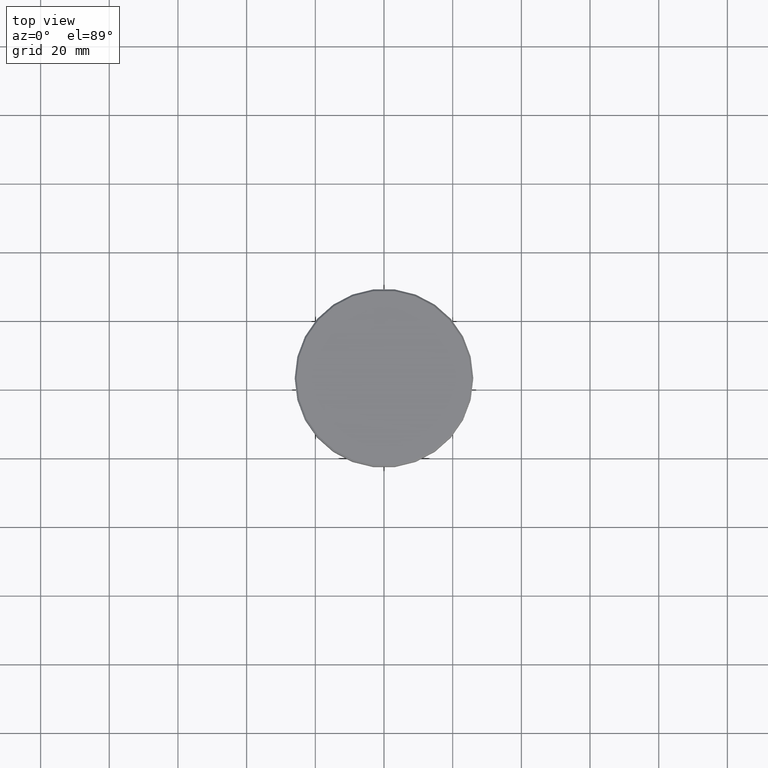
[diagram: clean part render]
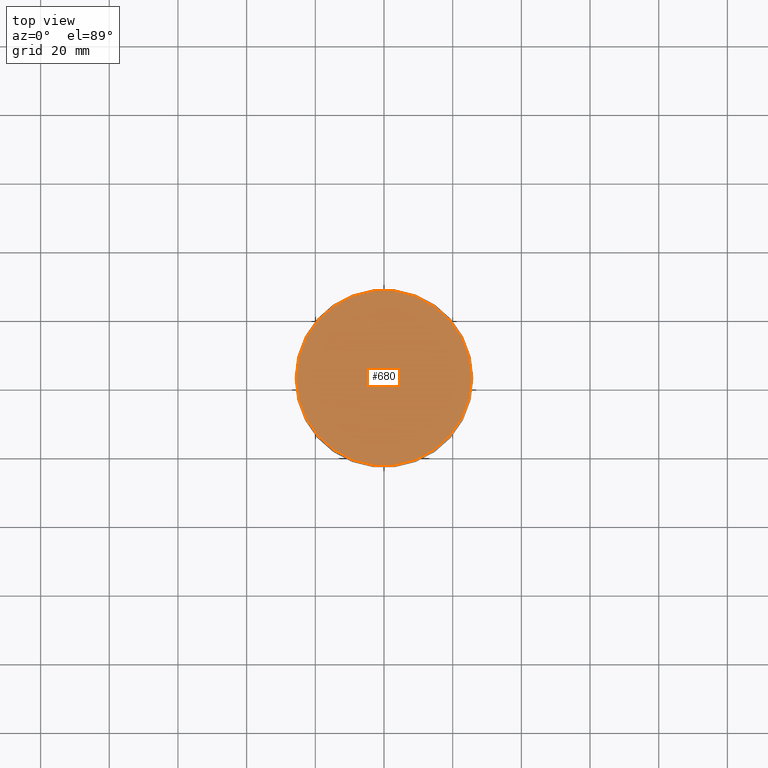
[diagram: same view with one face highlighted and labeled with its STEP entity id]
A machine part, top view. The second image highlights one B-rep face of the part: STEP entity #680.
In plain terms, the highlighted planar face has unit normal (0, -0, 1).
Its self-contained STEP definition (entity closure, byte-faithful):
#5 = EDGE_CURVE ( 'NONE', #1133, #776, #546, .T. ) ;
#101 = DIRECTION ( 'NONE',  ( 1.000000000000000000, 0.000000000000000000, 0.000000000000000000 ) ) ;
#182 = CARTESIAN_POINT ( 'NONE',  ( 0.000000000000000000, 0.000000000000000000, 0.000000000000000000 ) ) ;
#190 = CARTESIAN_POINT ( 'NONE',  ( 0.000000000000000000, 0.000000000000000000, 0.000000000000000000 ) ) ;
#294 = CIRCLE ( 'NONE', #976, 25.49999999999997158 ) ;
#441 = ORIENTED_EDGE ( 'NONE', *, *, #5, .T. ) ;
#519 = EDGE_LOOP ( 'NONE', ( #1055, #441 ) ) ;
#541 = DIRECTION ( 'NONE',  ( 1.000000000000000000, 0.000000000000000000, 0.000000000000000000 ) ) ;
#546 = CIRCLE ( 'NONE', #1030, 25.49999999999997158 ) ;
#556 = CARTESIAN_POINT ( 'NONE',  ( 0.000000000000000000, 0.000000000000000000, 0.000000000000000000 ) ) ;
#634 = CARTESIAN_POINT ( 'NONE',  ( 25.49999999999997158, 3.153465507804432826E-15, 0.000000000000000000 ) ) ;
#635 = DIRECTION ( 'NONE',  ( 0.000000000000000000, -0.000000000000000000, 1.000000000000000000 ) ) ;
#680 = ADVANCED_FACE ( 'NONE', ( #711 ), #1087, .T. ) ;
#711 = FACE_OUTER_BOUND ( 'NONE', #519, .T. ) ;
#725 = CARTESIAN_POINT ( 'NONE',  ( -25.49999999999997158, 0.000000000000000000, 0.000000000000000000 ) ) ;
#747 = AXIS2_PLACEMENT_3D ( 'NONE', #182, #635, #907 ) ;
#751 = DIRECTION ( 'NONE',  ( -0.000000000000000000, -0.000000000000000000, 1.000000000000000000 ) ) ;
#776 = VERTEX_POINT ( 'NONE', #725 ) ;
#885 = EDGE_CURVE ( 'NONE', #776, #1133, #294, .T. ) ;
#907 = DIRECTION ( 'NONE',  ( 1.000000000000000000, 0.000000000000000000, 0.000000000000000000 ) ) ;
#928 = DIRECTION ( 'NONE',  ( -0.000000000000000000, -0.000000000000000000, 1.000000000000000000 ) ) ;
#976 = AXIS2_PLACEMENT_3D ( 'NONE', #556, #928, #101 ) ;
#1030 = AXIS2_PLACEMENT_3D ( 'NONE', #190, #751, #541 ) ;
#1055 = ORIENTED_EDGE ( 'NONE', *, *, #885, .T. ) ;
#1087 = PLANE ( 'NONE',  #747 ) ;
#1133 = VERTEX_POINT ( 'NONE', #634 ) ;